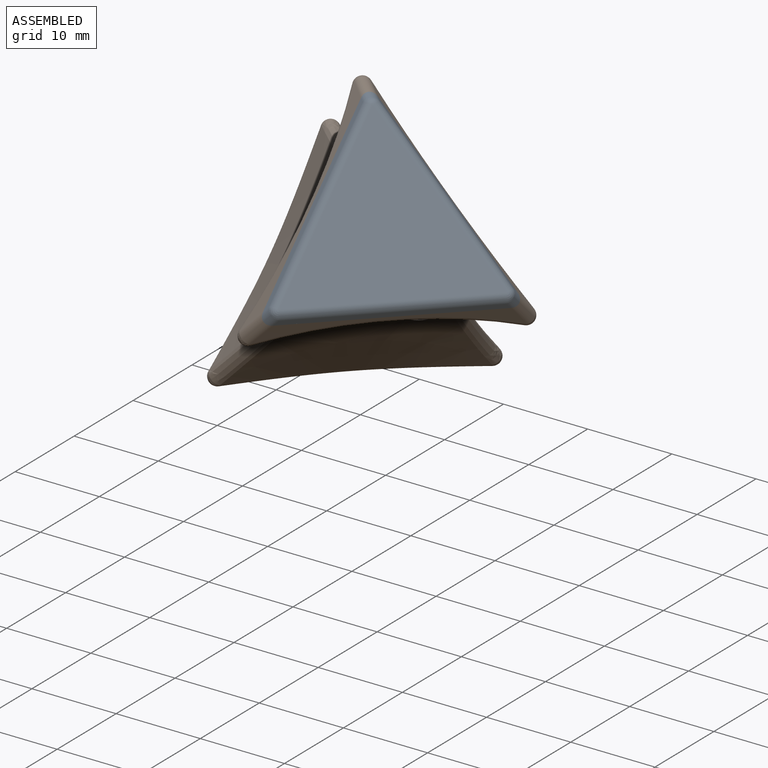
[diagram: assembled view]
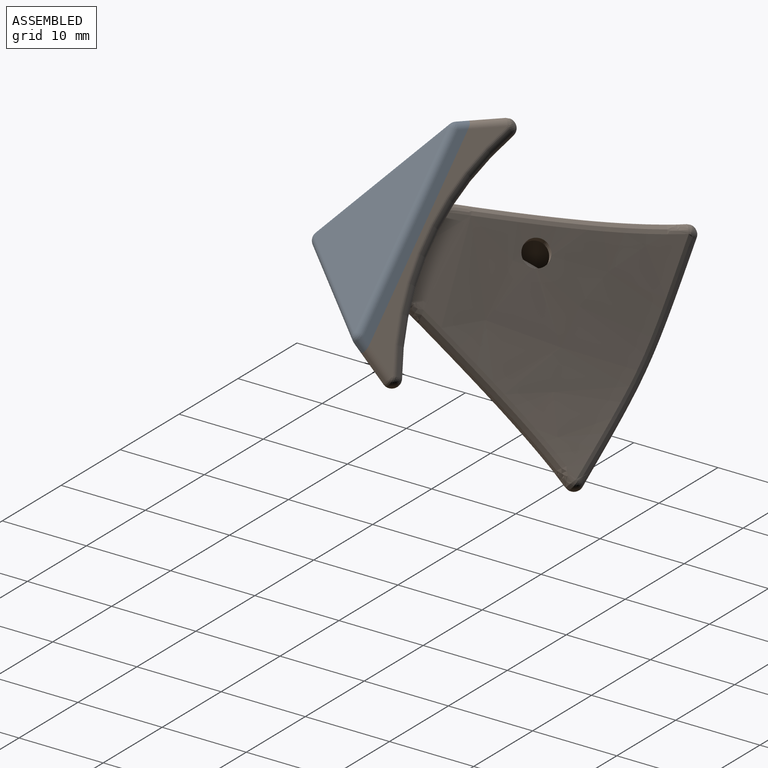
[diagram: assembled view, second angle]
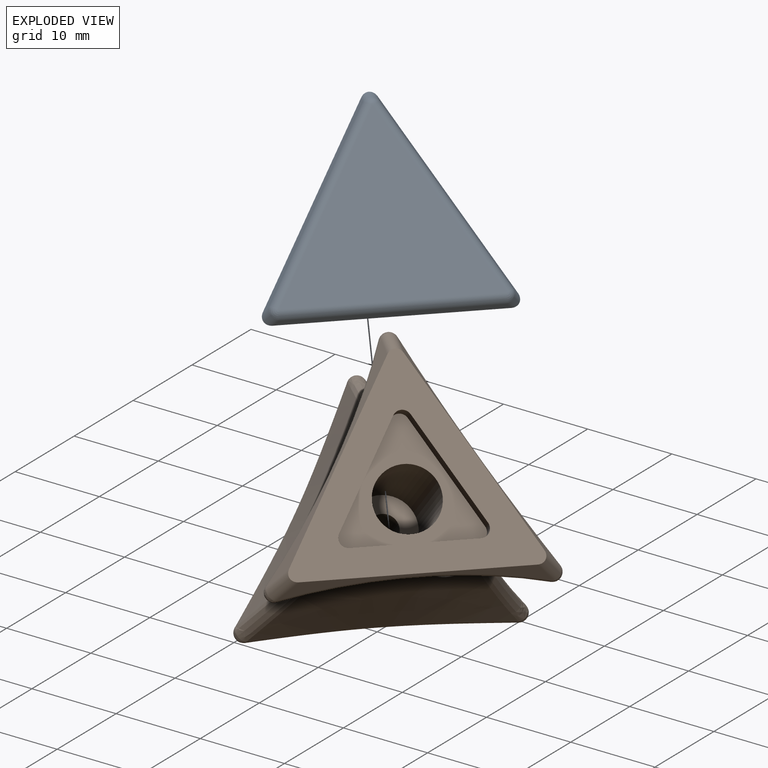
[diagram: exploded view]
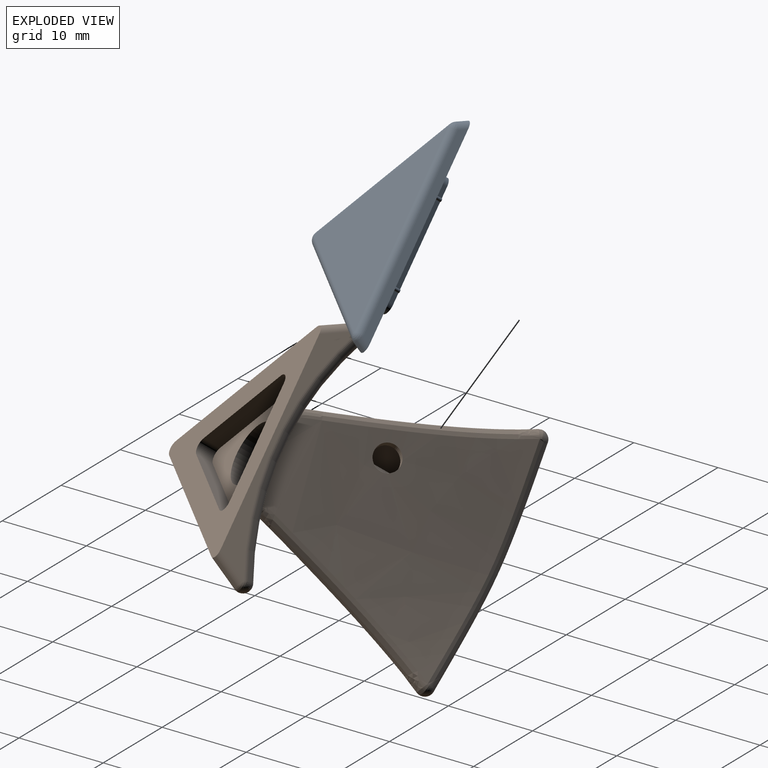
[diagram: exploded view, second angle]
ASSEMBLY  parts=2 mates=3
PART A: 33 faces, bbox 18.5x18.5x18.5 mm
  f0: plane 7.8x7.8mm, normal (0.41,-0.41,-0.82), area 16.8mm2, adj f1,f20,f31,f32
  f1: plane 18.24x18.24mm, normal (-0.58,0.58,-0.58), area 194.6mm2, adj f0,f2,f3,f4,f5,f6,f14,f15
  f2: plane 1.93x1.93mm, normal (0.41,-0.41,-0.82), area 2.3mm2, adj f1,f20,f24,f31
  f3: plane 7.8x7.8mm, normal (0.41,0.82,0.41), area 16.8mm2, adj f1,f20,f29,f30
  f4: plane 1.93x1.93mm, normal (0.41,0.82,0.41), area 2.3mm2, adj f1,f20,f22,f29
  f5: plane 1.93x1.93mm, normal (-0.82,-0.41,0.41), area 2.3mm2, adj f1,f20,f22,f28
  f6: plane 7.8x7.8mm, normal (-0.82,-0.41,0.41), area 16.8mm2, adj f1,f20,f27,f28
  f7: cylinder r=1mm len=16.08mm, axis (-0.71,0,0.71), area 27.8mm2, adj f9,f11,f12,f19
  f8: cylinder r=1mm len=16.08mm, axis (0,-0.71,-0.71), area 27.8mm2, adj f9,f11,f13,f18
  f9: plane 15.95x15.95mm, normal (0.58,-0.58,0.58), area 220.2mm2, adj f7,f8,f10
  f10: cylinder r=1mm len=16.08mm, axis (0.71,0.71,0), area 27.8mm2, adj f9,f12,f13,f17
  f11: sphere r=1mm, area 1mm2, adj f7,f8,f14
  f12: sphere r=1mm, area 1mm2, adj f7,f10,f16
  f13: sphere r=1mm, area 1mm2, adj f8,f10,f15
  f14: cylinder r=1mm len=2.09mm, axis (0.71,-0.71,0), area 2.3mm2, adj f1,f11,f18,f19
  f15: cylinder r=1mm len=2.09mm, axis (0.71,0,0.71), area 2.3mm2, adj f1,f13,f17,f18
  f16: cylinder r=1mm len=2.09mm, axis (0,0.71,-0.71), area 2.3mm2, adj f1,f12,f17,f19
  f17: plane 16.67x16.67mm, normal (0.58,-0.58,-0.58), area 20.4mm2, adj f1,f10,f15,f16
  f18: plane 16.67x16.67mm, normal (-0.58,-0.58,0.58), area 20.4mm2, adj f1,f8,f14,f15
  f19: plane 16.67x16.67mm, normal (0.58,0.58,0.58), area 20.4mm2, adj f1,f7,f14,f16
  f20: plane 10.98x10.98mm, normal (-0.58,0.58,-0.58), area 115.6mm2, adj f0,f2,f3,f4,f5,f6,f21,f22
  f21: plane 1.93x1.93mm, normal (-0.82,-0.41,0.41), area 2.3mm2, adj f1,f20,f26,f27
  f22: cylinder r=1mm len=2.24mm, axis (0.58,-0.58,0.58), area 3.7mm2, adj f1,f4,f5,f20
  f23: plane 1.93x1.93mm, normal (0.41,0.82,0.41), area 2.3mm2, adj f1,f20,f24,f30
  f24: cylinder r=1mm len=2.24mm, axis (0.58,-0.58,0.58), area 3.7mm2, adj f1,f2,f20,f23
  f25: plane 1.93x1.93mm, normal (0.41,-0.41,-0.82), area 2.3mm2, adj f1,f20,f26,f32
  f26: cylinder r=1mm len=2.24mm, axis (0.58,-0.58,0.58), area 3.7mm2, adj f1,f20,f21,f25
  f27: cylinder r=0.2mm len=1.32mm, axis (-0.58,0.58,-0.58), area 1.1mm2, adj f1,f6,f20,f21
  f28: cylinder r=0.2mm len=1.32mm, axis (-0.58,0.58,-0.58), area 1.1mm2, adj f1,f5,f6,f20
  f29: cylinder r=0.2mm len=1.32mm, axis (-0.58,0.58,-0.58), area 1.1mm2, adj f1,f3,f4,f20
  f30: cylinder r=0.2mm len=1.32mm, axis (-0.58,0.58,-0.58), area 1.1mm2, adj f1,f3,f20,f23
  f31: cylinder r=0.2mm len=1.32mm, axis (-0.58,0.58,-0.58), area 1.1mm2, adj f0,f1,f2,f20
  f32: cylinder r=0.2mm len=1.32mm, axis (-0.58,0.58,-0.58), area 1.1mm2, adj f0,f1,f20,f25
PART B: 59 faces, bbox 42.5x42.5x42.5 mm
  f0: plane 19.44x19.44mm, normal (0.58,0.58,0.58), area 33mm2, adj f9,f10,f50,f58
  f1: plane 19.44x19.44mm, normal (-0.58,-0.58,0.58), area 33mm2, adj f9,f11,f53,f58
  f2: plane 19.44x19.44mm, normal (0.58,-0.58,-0.58), area 33mm2, adj f10,f11,f56,f58
  f3: cylinder r=1mm len=2.38mm, axis (0.58,-0.58,0.58), area 4.2mm2, adj f4,f8,f33,f58
  f4: plane 10.34x10.34mm, normal (-0.41,0.41,0.82), area 26mm2, adj f3,f5,f33,f58
  f5: cylinder r=1mm len=2.38mm, axis (0.58,-0.58,0.58), area 4.2mm2, adj f4,f6,f33,f58
  f6: plane 10.34x10.34mm, normal (-0.41,-0.82,-0.41), area 26mm2, adj f5,f7,f33,f58
  f7: cylinder r=1mm len=2.38mm, axis (0.58,-0.58,0.58), area 4.2mm2, adj f6,f8,f33,f58
  f8: plane 10.34x10.34mm, normal (0.82,0.41,-0.41), area 26mm2, adj f3,f7,f33,f58
  f9: cylinder r=1mm len=3.93mm, axis (0.71,-0.71,0), area 7.5mm2, adj f0,f1,f49,f58
  f10: cylinder r=1mm len=3.93mm, axis (0,0.71,-0.71), area 7.5mm2, adj f0,f2,f54,f58
  f11: cylinder r=1mm len=3.93mm, axis (0.71,0,0.71), area 7.5mm2, adj f1,f2,f55,f58
  f12: cylinder r=3.5mm len=15.24mm, axis (0.58,-0.58,0.58), area 362.9mm2, adj f29,f33
  f13: cone r=0mm half-angle=81.4deg, axis (0.58,-0.58,0.58), area 194.6mm2, adj f15,f16,f17,f18,f20
  f14: cylinder r=5mm len=16.58mm, axis (0.58,-0.58,0.58), area 187.3mm2, adj f15,f16,f17,f19
  f15: cone r=0.22mm half-angle=81.4deg, axis (0.58,-0.58,-0.58), area 253.8mm2, adj f13,f14,f16,f17,f30
  f16: cone r=0.22mm half-angle=81.4deg, axis (-0.58,-0.58,0.58), area 253.5mm2, adj f13,f14,f15,f17,f32
  f17: cone r=0.22mm half-angle=81.4deg, axis (0.58,0.58,0.58), area 253.5mm2, adj f13,f14,f15,f16,f31
  f18: cylinder r=3.12mm len=9.1mm, axis (0.58,-0.58,0.58), area 135.9mm2, adj f13,f19
  f19: plane 8.17x8.17mm, normal (-0.58,0.58,-0.58), area 47.9mm2, adj f14,f18
  f20: cylinder r=1.75mm len=3.8mm, axis (-0.58,0.58,-0.58), area 17.3mm2, adj f13,f21
  f21: cone r=0mm half-angle=81.4deg, axis (0.58,-0.58,0.58), area 257.8mm2, adj f20,f34,f35,f36,f57
  f22: cylinder r=33mm len=21.38mm, axis (0.58,0.58,0.58), area 77.9mm2, adj f25,f42,f43,f46,f47,f50,f51
  f23: cylinder r=33mm len=21.38mm, axis (-0.58,-0.58,0.58), area 77.9mm2, adj f24,f42,f45,f46,f48,f52,f53
  f24: cone r=0mm half-angle=81.4deg, axis (-0.58,-0.58,0.58), area 406mm2, adj f23,f32,f35,f41,f42,f45
  f25: cone r=0mm half-angle=81.4deg, axis (0.58,0.58,0.58), area 406mm2, adj f22,f31,f36,f40,f42,f43
  f26: cylinder r=33mm len=20.68mm, axis (0.58,-0.58,-0.58), area 65.9mm2, adj f44,f51,f52,f56
  f27: cone r=0mm half-angle=81.4deg, axis (0.58,-0.58,-0.58), area 397.8mm2, adj f30,f34,f40,f41,f44
  f28: cylinder r=1.62mm len=7.85mm, axis (0.58,-0.58,0.58), area 91.9mm2, adj f29,f57
  f29: plane 5.72x5.72mm, normal (0.58,-0.58,0.58), area 30.2mm2, adj f12,f28
  f30: cylinder r=1.5mm len=3.33mm, axis (0.58,-0.58,-0.58), area 13.5mm2, adj f15,f27
  f31: cylinder r=1.5mm len=3.48mm, axis (0.58,0.58,0.58), area 15.6mm2, adj f17,f25
  f32: cylinder r=1.5mm len=3.33mm, axis (-0.58,-0.58,0.58), area 13.3mm2, adj f16,f24
  f33: plane 10.82x10.82mm, normal (0.58,-0.58,0.58), area 76.7mm2, adj f3,f4,f5,f6,f7,f8,f12
  f34: bspline ~24.9x24.21mm, area 46mm2, adj f21,f27,f37,f38
  f35: bspline ~24.9x24.21mm, area 46mm2, adj f21,f24,f38,f39
  f36: bspline ~24.91x24.23mm, area 46mm2, adj f21,f25,f37,f39
  f37: sphere r=1mm, area 2.7mm2, adj f34,f36,f40
  f38: sphere r=1mm, area 2.7mm2, adj f34,f35,f41
  f39: sphere r=1mm, area 2.7mm2, adj f35,f36,f42
  f40: bspline ~22.59x22.59mm, area 49.6mm2, adj f25,f27,f37,f43
  f41: bspline ~21.14x21.14mm, area 49.6mm2, adj f24,f27,f38,f45
  f42: bspline ~22.59x22.59mm, area 51.1mm2, adj f22,f23,f24,f25,f39,f46
  f43: bspline ~2.35x2.09mm, area 1.4mm2, adj f22,f25,f40,f44,f47
  f44: torus R=32mm, axis (0.58,-0.58,-0.58), area 14.7mm2, adj f26,f27,f43,f45,f47,f48
  f45: bspline ~2.08x1.92mm, area 1.4mm2, adj f23,f24,f41,f44,f48
  f46: bspline ~13.16x8.06mm, area 8.1mm2, adj f22,f23,f42,f49
  f47: bspline ~2.85x2.5mm, area 2.3mm2, adj f22,f43,f44,f51
  f48: bspline ~3.19x2.68mm, area 2.3mm2, adj f23,f44,f45,f52
  f49: sphere r=1mm, area 3.7mm2, adj f9,f46,f50,f53
  f50: torus R=34mm, axis (0.58,0.58,0.58), area 43.6mm2, adj f0,f22,f49,f54
  f51: bspline ~5.38x4.02mm, area 6.4mm2, adj f22,f26,f47,f54
  f52: bspline ~5.38x4.02mm, area 6.4mm2, adj f23,f26,f48,f55
  f53: torus R=34mm, axis (-0.58,-0.58,0.58), area 43.6mm2, adj f1,f23,f49,f55
  f54: sphere r=1mm, area 4.2mm2, adj f10,f50,f51,f56
  f55: sphere r=1mm, area 3.7mm2, adj f11,f52,f53,f56
  f56: torus R=34mm, axis (0.58,-0.58,-0.58), area 43.6mm2, adj f2,f26,f54,f55
  f57: torus R=2.62mm, axis (0.58,-0.58,0.58), area 22.2mm2, adj f21,f28
  f58: plane 18.84x18.84mm, normal (0.58,-0.58,0.58), area 195mm2, adj f0,f1,f2,f3,f4,f5,f6,f7
PLACE A at identity
PLACE B at identity fixed
MATE planar A.f0 <-> B.f4  axis (0.41,-0.41,-0.82) through (24.14,-24.14,18.32)mm
MATE planar A.f6 <-> B.f8  axis (-0.82,-0.41,0.41) through (18.32,-24.14,24.14)mm
MATE planar A.f1 <-> B.f13  axis (-0.58,0.58,-0.58) through (22.7,-22.7,22.7)mm
